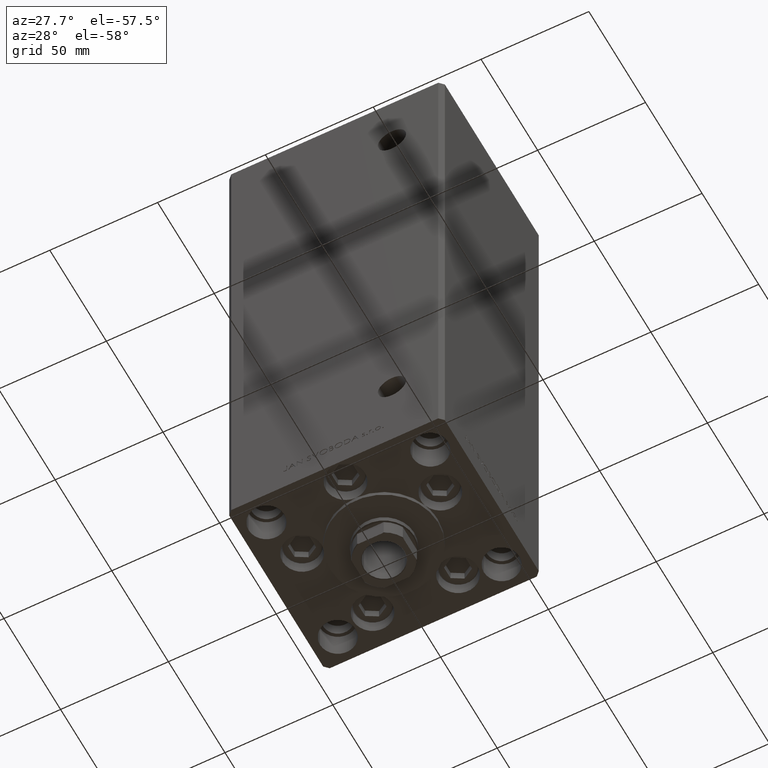
[diagram: clean part render]
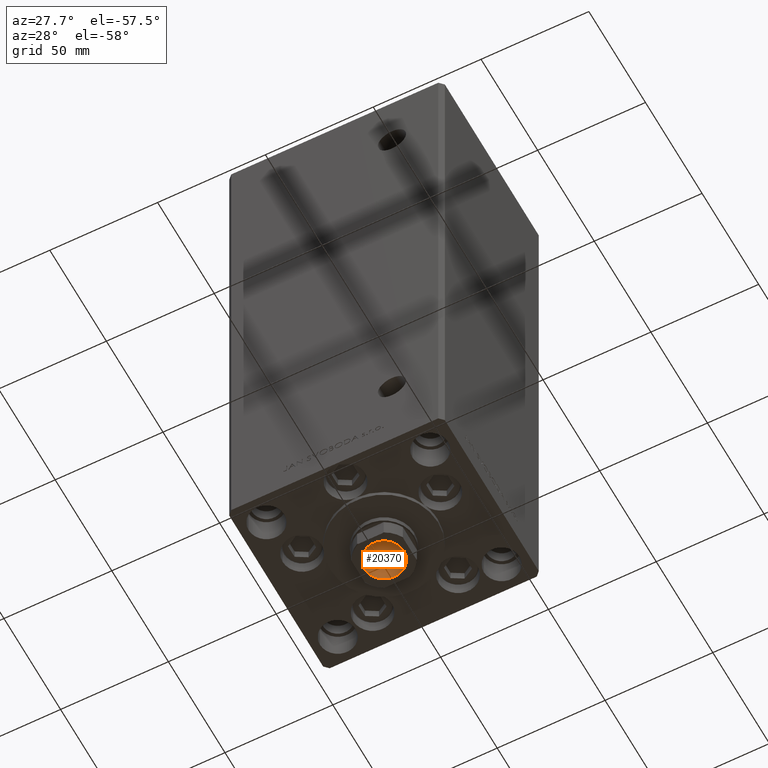
[diagram: same view with one face highlighted and labeled with its STEP entity id]
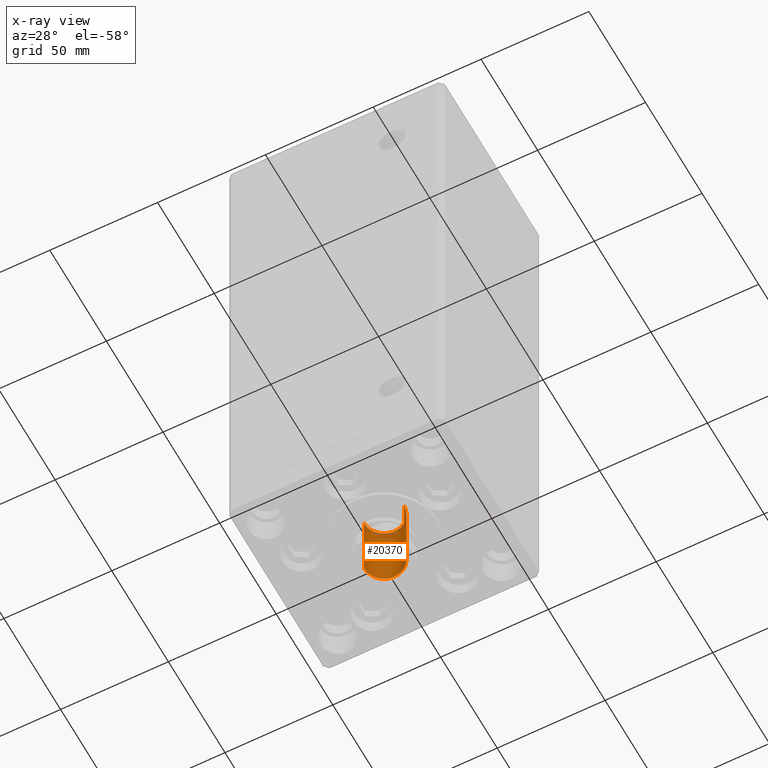
[diagram: x-ray of the same camera — body ghosted, the highlighted face saturated]
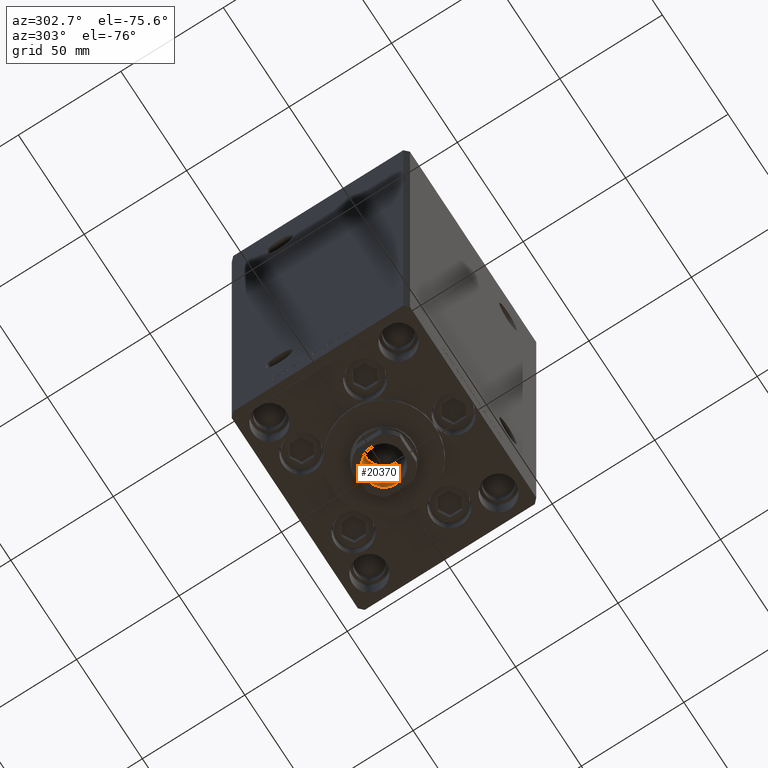
[diagram: same view with one face highlighted and labeled with its STEP entity id]
A machine part, auxiliary view. The second image highlights one B-rep face of the part: STEP entity #20370.
The next image is the same camera in x-ray: the body ghosted, the highlighted face saturated — about 7% of this face is hidden behind the body in this view.
A second angle (auxiliary view) of the same face is appended — the face is thin or edge-on in the first view.
In plain terms, the highlighted cylindrical surface (edge-blend (fillet) strip) has radius 9.25 mm, axis along (0, 0, -1).
Its self-contained STEP definition (entity closure, byte-faithful):
#1147 = VERTEX_POINT ( 'NONE', #2420 ) ;
#2161 = AXIS2_PLACEMENT_3D ( 'NONE', #48826, #14601, #37921 ) ;
#2420 = CARTESIAN_POINT ( 'NONE',  ( 9.249999999999994671, 0.000000000000000000, 200.2500000000000000 ) ) ;
#5185 = VERTEX_POINT ( 'NONE', #45954 ) ;
#5773 = ORIENTED_EDGE ( 'NONE', *, *, #9663, .T. ) ;
#6597 = DIRECTION ( 'NONE',  ( -0.000000000000000000, -0.000000000000000000, 1.000000000000000000 ) ) ;
#6734 = ORIENTED_EDGE ( 'NONE', *, *, #31870, .F. ) ;
#9663 = EDGE_CURVE ( 'NONE', #39546, #35248, #17253, .T. ) ;
#10126 = CARTESIAN_POINT ( 'NONE',  ( -9.249999999999996447, 1.132798289211301304E-15, 234.9499999999999886 ) ) ;
#10637 = CARTESIAN_POINT ( 'NONE',  ( 0.000000000000000000, 0.000000000000000000, 200.2500000000000000 ) ) ;
#10765 = AXIS2_PLACEMENT_3D ( 'NONE', #10637, #6597, #22047 ) ;
#14601 = DIRECTION ( 'NONE',  ( -0.000000000000000000, -0.000000000000000000, 1.000000000000000000 ) ) ;
#16003 = DIRECTION ( 'NONE',  ( 1.000000000000000000, 0.000000000000000000, 0.000000000000000000 ) ) ;
#17253 = CIRCLE ( 'NONE', #20525, 9.249999999999996447 ) ;
#17494 = VECTOR ( 'NONE', #49323, 1000.000000000000000 ) ;
#18161 = CYLINDRICAL_SURFACE ( 'NONE', #2161, 9.249999999999996447 ) ;
#20370 = ADVANCED_FACE ( 'NONE', ( #34100 ), #18161, .F. ) ;
#20525 = AXIS2_PLACEMENT_3D ( 'NONE', #23864, #33823, #16003 ) ;
#22047 = DIRECTION ( 'NONE',  ( 1.000000000000000000, 0.000000000000000000, 0.000000000000000000 ) ) ;
#22948 = LINE ( 'NONE', #49785, #36020 ) ;
#23864 = CARTESIAN_POINT ( 'NONE',  ( 0.000000000000000000, 0.000000000000000000, 234.9499999999999886 ) ) ;
#25981 = DIRECTION ( 'NONE',  ( -0.000000000000000000, -0.000000000000000000, 1.000000000000000000 ) ) ;
#27271 = LINE ( 'NONE', #34348, #17494 ) ;
#31870 = EDGE_CURVE ( 'NONE', #1147, #5185, #43144, .T. ) ;
#32559 = ORIENTED_EDGE ( 'NONE', *, *, #41071, .T. ) ;
#33823 = DIRECTION ( 'NONE',  ( 0.000000000000000000, 0.000000000000000000, 1.000000000000000000 ) ) ;
#34100 = FACE_OUTER_BOUND ( 'NONE', #43529, .T. ) ;
#34348 = CARTESIAN_POINT ( 'NONE',  ( -9.249999999999996447, 1.132798289211301304E-15, 235.2500000000000284 ) ) ;
#35248 = VERTEX_POINT ( 'NONE', #10126 ) ;
#36020 = VECTOR ( 'NONE', #25981, 1000.000000000000000 ) ;
#37921 = DIRECTION ( 'NONE',  ( 1.000000000000000000, 0.000000000000000000, 0.000000000000000000 ) ) ;
#39546 = VERTEX_POINT ( 'NONE', #47737 ) ;
#41071 = EDGE_CURVE ( 'NONE', #1147, #39546, #22948, .T. ) ;
#43125 = EDGE_CURVE ( 'NONE', #5185, #35248, #27271, .T. ) ;
#43144 = CIRCLE ( 'NONE', #10765, 9.249999999999994671 ) ;
#43529 = EDGE_LOOP ( 'NONE', ( #49575, #6734, #32559, #5773 ) ) ;
#45954 = CARTESIAN_POINT ( 'NONE',  ( -9.249999999999994671, 1.132798289211300909E-15, 200.2500000000000000 ) ) ;
#47737 = CARTESIAN_POINT ( 'NONE',  ( 9.249999999999996447, 0.000000000000000000, 234.9499999999999886 ) ) ;
#48826 = CARTESIAN_POINT ( 'NONE',  ( 0.000000000000000000, 0.000000000000000000, 235.2500000000000284 ) ) ;
#49323 = DIRECTION ( 'NONE',  ( -0.000000000000000000, -0.000000000000000000, 1.000000000000000000 ) ) ;
#49575 = ORIENTED_EDGE ( 'NONE', *, *, #43125, .F. ) ;
#49785 = CARTESIAN_POINT ( 'NONE',  ( 9.249999999999996447, 0.000000000000000000, 235.2500000000000284 ) ) ;